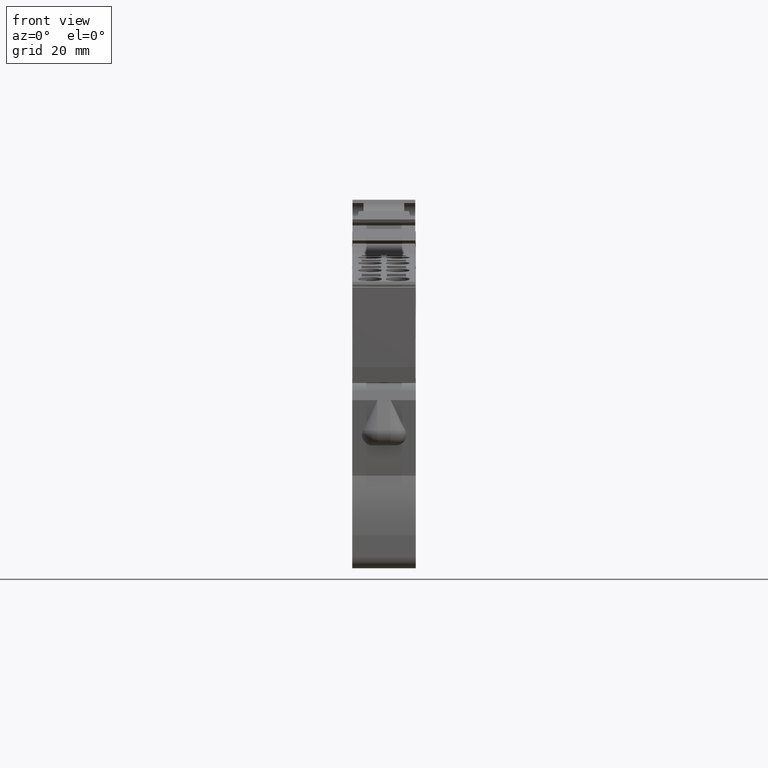
[diagram: clean part render]
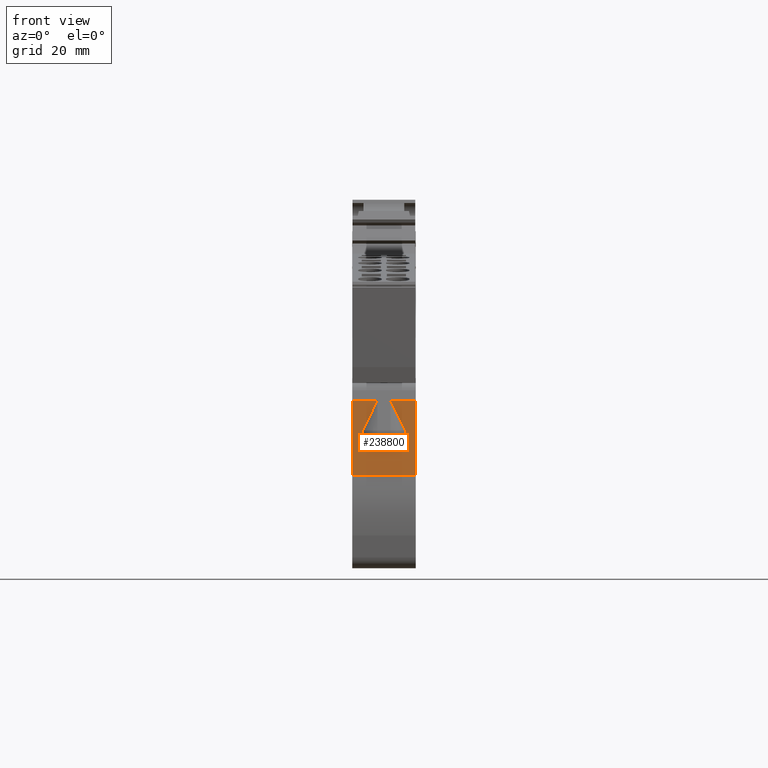
[diagram: same view with one face highlighted and labeled with its STEP entity id]
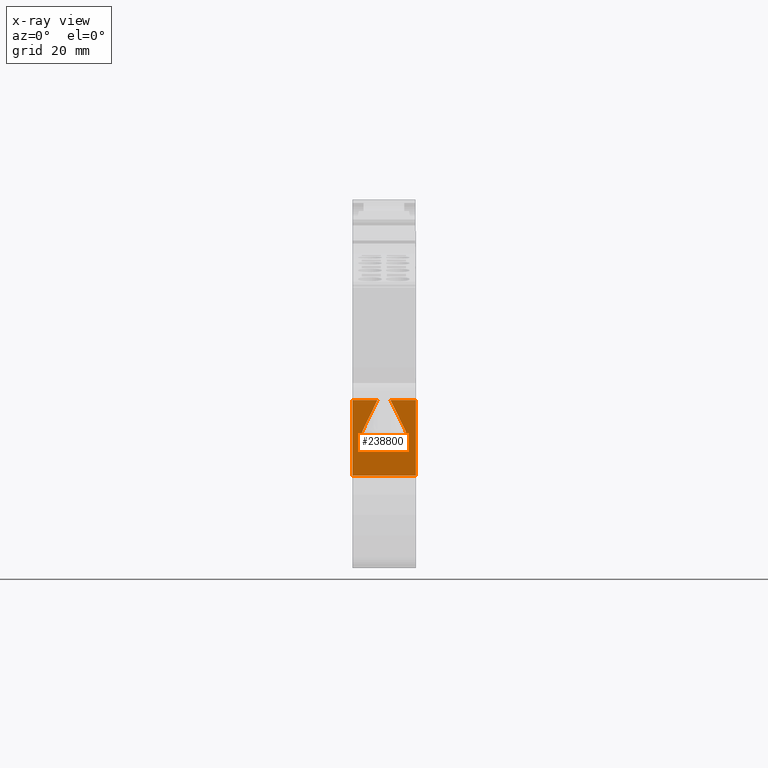
[diagram: x-ray of the same camera — body ghosted, the highlighted face saturated]
A machine part, front view. The second image highlights one B-rep face of the part: STEP entity #238800.
The next image is the same camera in x-ray: the body ghosted, the highlighted face saturated — about 0% of this face is hidden behind the body in this view.
In plain terms, the highlighted planar face has unit normal (0, 1, 0).
Its self-contained STEP definition (entity closure, byte-faithful):
#178160=CARTESIAN_POINT('',(179.617847465003,-45.2366806104567,36.45));
#178170=VERTEX_POINT('',#178160);
#178200=CARTESIAN_POINT('',(179.617847465003,-62.4038624519249,36.45));
#178210=DIRECTION('',(0.,-1.,1.19110369467609E-44));
#178220=VECTOR('',#178210,1.);
#178230=LINE('',#178200,#178220);
#178240=CARTESIAN_POINT('',(179.617847465003,-30.8305420435832,36.45));
#178250=VERTEX_POINT('',#178240);
#178260=EDGE_CURVE('',#178250,#178170,#178230,.T.);
#183260=CARTESIAN_POINT('',(179.617847465003,-30.8305420435833,24.3));
#183270=VERTEX_POINT('',#183260);
#183300=CARTESIAN_POINT('',(179.617847465003,-62.4038624519249,24.3));
#183310=DIRECTION('',(0.,1.,-1.19110369467609E-44));
#183320=VECTOR('',#183310,1.);
#183330=LINE('',#183300,#183320);
#183340=CARTESIAN_POINT('',(179.617847465003,-45.2366806104566,24.3));
#183350=VERTEX_POINT('',#183340);
#183360=EDGE_CURVE('',#183350,#183270,#183330,.T.);
#237760=CARTESIAN_POINT('',(179.617847465003,-30.8305420435833,24.3));
#237770=DIRECTION('',(0.,1.19110369467609E-44,1.));
#237780=VECTOR('',#237770,1.);
#237790=LINE('',#237760,#237780);
#237800=CARTESIAN_POINT('',(179.617847465003,-30.8305420435833,
29.1250000000011));
#237810=VERTEX_POINT('',#237800);
#237820=EDGE_CURVE('',#183270,#237810,#237790,.T.);
#237870=CARTESIAN_POINT('',(179.617847465003,-30.8305420435833,
31.6250000000011));
#237880=VERTEX_POINT('',#237870);
#237890=EDGE_CURVE('',#237880,#178250,#237790,.T.);
#238230=CARTESIAN_POINT('',(179.617847465003,-30.8305420435833,24.3));
#238240=DIRECTION('',(1.,-0.,0.));
#238250=DIRECTION('',(0.,1.,-1.19110369467609E-44));
#238260=AXIS2_PLACEMENT_3D('',#238230,#238240,#238250);
#238270=PLANE('',#238260);
#238280=ORIENTED_EDGE('',*,*,#183360,.F.);
#238290=ORIENTED_EDGE('',*,*,#237820,.F.);
#238300=CARTESIAN_POINT('',(179.617847465003,-36.5789029033909,
26.326745771378));
#238310=DIRECTION('',(-3.87845961643874E-15,-0.899127114313798,
-0.437687596700824));
#238320=VECTOR('',#238310,6.39326828019719);
#238330=LINE('',#238300,#238320);
#238340=CARTESIAN_POINT('',(179.617847465003,-36.5789029033909,
26.326745771378));
#238350=VERTEX_POINT('',#238340);
#238360=EDGE_CURVE('',#237810,#238350,#238330,.T.);
#238370=ORIENTED_EDGE('',*,*,#238360,.F.);
#238380=CARTESIAN_POINT('',(179.617847465003,-37.4542780967925,
28.1250000000056));
#238390=DIRECTION('',(1.,0.,0.));
#238400=DIRECTION('',(0.,1.19110369467609E-44,1.));
#238410=AXIS2_PLACEMENT_3D('',#238380,#238390,#238400);
#238420=CIRCLE('',#238410,2.);
#238430=CARTESIAN_POINT('',(179.617847465003,-39.4542780967925,
28.1250000000056));
#238440=VERTEX_POINT('',#238430);
#238450=EDGE_CURVE('',#238440,#238350,#238420,.T.);
#238460=ORIENTED_EDGE('',*,*,#238450,.T.);
#238470=CARTESIAN_POINT('',(179.617847465003,-39.4542780967925,24.3));
#238480=DIRECTION('',(0.,-1.19110369467609E-44,-1.));
#238490=VECTOR('',#238480,1.);
#238500=LINE('',#238470,#238490);
#238510=CARTESIAN_POINT('',(179.617847465003,-39.4542780967925,
32.6249999999967));
#238520=VERTEX_POINT('',#238510);
#238530=EDGE_CURVE('',#238520,#238440,#238500,.T.);
#238540=ORIENTED_EDGE('',*,*,#238530,.T.);
#238550=CARTESIAN_POINT('',(179.617847465003,-37.4542780967925,
32.6249999999967));
#238560=DIRECTION('',(1.,0.,0.));
#238570=DIRECTION('',(0.,-1.19110369467609E-44,-1.));
#238580=AXIS2_PLACEMENT_3D('',#238550,#238560,#238570);
#238590=CIRCLE('',#238580,2.);
#238600=CARTESIAN_POINT('',(179.617847465003,-36.5789029033909,
34.4232542286242));
#238610=VERTEX_POINT('',#238600);
#238620=EDGE_CURVE('',#238610,#238520,#238590,.T.);
#238630=ORIENTED_EDGE('',*,*,#238620,.T.);
#238640=CARTESIAN_POINT('',(179.617847465003,-36.5789029033909,
34.4232542286243));
#238650=DIRECTION('',(-3.87845961643875E-15,-0.899127114313798,
0.437687596700824));
#238660=VECTOR('',#238650,6.39326828019719);
#238670=LINE('',#238640,#238660);
#238680=EDGE_CURVE('',#237880,#238610,#238670,.T.);
#238690=ORIENTED_EDGE('',*,*,#238680,.T.);
#238700=ORIENTED_EDGE('',*,*,#237890,.F.);
#238710=ORIENTED_EDGE('',*,*,#178260,.F.);
#238720=CARTESIAN_POINT('',(179.617847465003,-45.2366806104567,24.3));
#238730=DIRECTION('',(0.,1.19110369467609E-44,1.));
#238740=VECTOR('',#238730,1.);
#238750=LINE('',#238720,#238740);
#238760=EDGE_CURVE('',#183350,#178170,#238750,.T.);
#238770=ORIENTED_EDGE('',*,*,#238760,.T.);
#238780=EDGE_LOOP('',(#238770,#238710,#238700,#238690,#238630,#238540,
#238460,#238370,#238290,#238280));
#238790=FACE_OUTER_BOUND('',#238780,.T.);
#238800=ADVANCED_FACE('',(#238790),#238270,.F.);